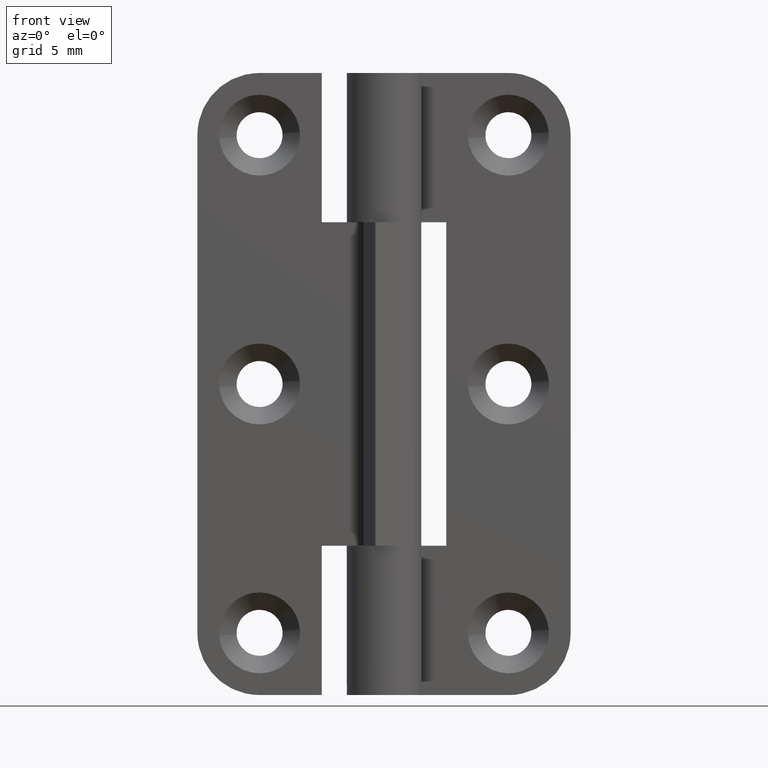
[diagram: clean part render]
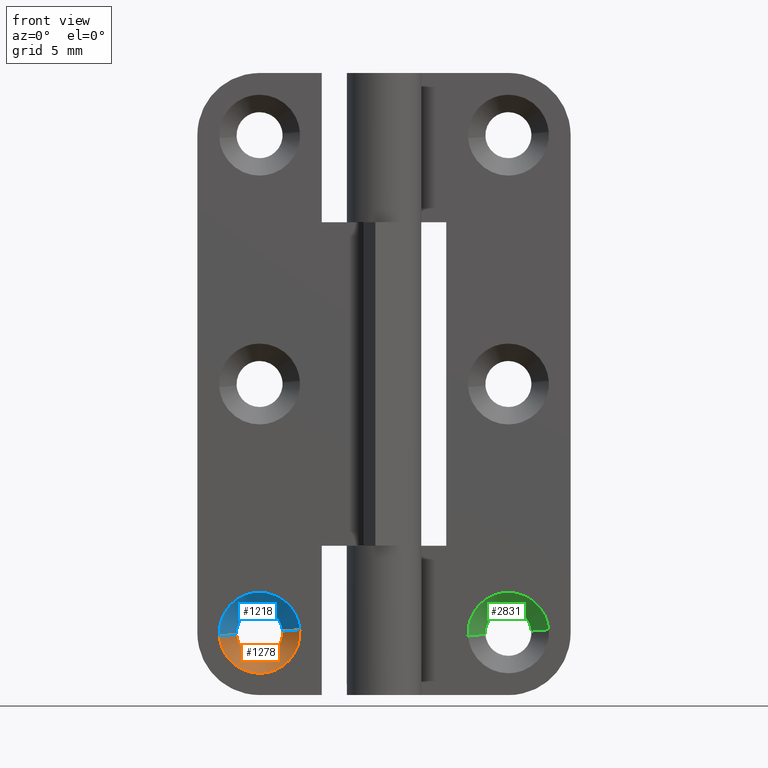
[diagram: same view with three faces highlighted in distinct colors, each labeled with its STEP entity id]
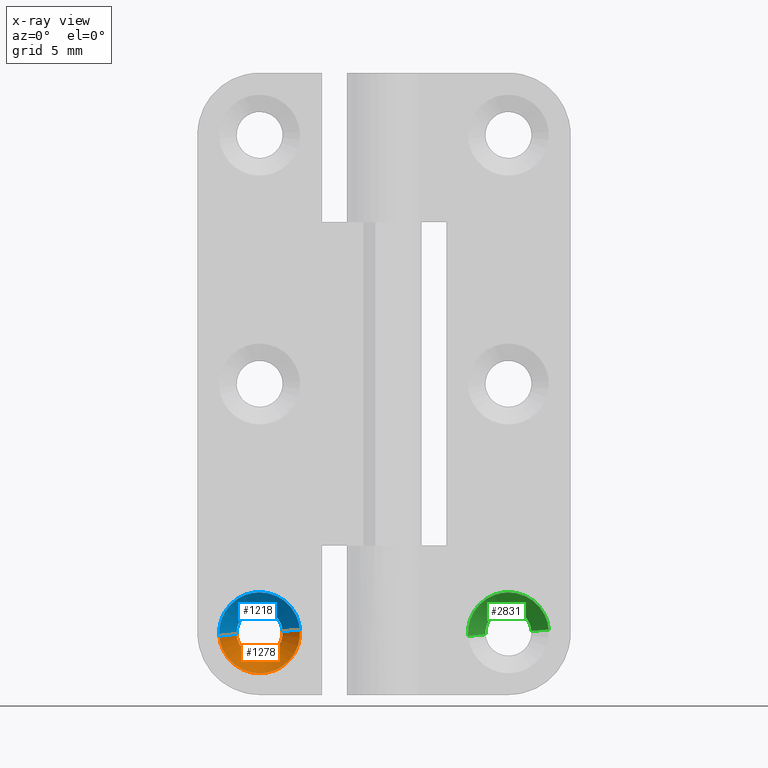
[diagram: x-ray of the same camera — body ghosted, the three highlighted faces saturated]
A machine part, front view with three faces highlighted in distinct colors.
The next image is the same camera in x-ray (body ghosted, the three faces saturated) — at least one of them is partly hidden behind the body in this view.
Their STEP definitions:

[orange] entity #1278 — the highlighted face is a freeform B-spline surface patch.
#969=CARTESIAN_POINT('',(-8.162081992152917,2.900000000000000,4.788913770152194));
#970=VERTEX_POINT('',#969);
#971=CARTESIAN_POINT('',(-10.0,2.900000000000000,3.150000000000100));
#972=VERTEX_POINT('',#971);
#973=CARTESIAN_POINT('',(-8.162081992152917,2.900000000000000,4.788913770152194));
#974=CARTESIAN_POINT('',(-8.350312439561385,2.900000000000000,3.150000000000099));
#975=CARTESIAN_POINT('',(-10.0,2.900000000000000,3.150000000000100));
#983=(BOUNDED_CURVE()B_SPLINE_CURVE(2,(#973,#974,#975),.UNSPECIFIED.,.F.,.U.)B_SPLINE_CURVE_WITH_KNOTS((3,3),(0.269767755891018,0.500000000000000),.UNSPECIFIED.)CURVE()GEOMETRIC_REPRESENTATION_ITEM()RATIONAL_B_SPLINE_CURVE((0.957343736432242,0.730266147793103,1.0))REPRESENTATION_ITEM(''));
#984=EDGE_CURVE('',#970,#972,#983,.T.);
#1023=CARTESIAN_POINT('',(-11.846549391234459,2.899999999998773,4.887060433277013));
#1024=VERTEX_POINT('',#1023);
#1030=CARTESIAN_POINT('',(-10.0,2.900000000000000,3.150000000000100));
#1031=CARTESIAN_POINT('',(-11.740306442284723,2.900000000000001,3.150000000000099));
#1032=CARTESIAN_POINT('',(-11.846549391234461,2.899999999998774,4.887060433277013));
#1040=(BOUNDED_CURVE()B_SPLINE_CURVE(2,(#1030,#1031,#1032),.UNSPECIFIED.,.F.,.U.)B_SPLINE_CURVE_WITH_KNOTS((3,3),(0.500000000000000,0.739332983866171),.UNSPECIFIED.)CURVE()GEOMETRIC_REPRESENTATION_ITEM()RATIONAL_B_SPLINE_CURVE((1.0,0.719603967948837,0.976072088017988))REPRESENTATION_ITEM(''));
#1041=EDGE_CURVE('',#972,#1024,#1040,.T.);
#1068=CARTESIAN_POINT('',(-8.155702932588966,2.899999999988248,5.145149327186113));
#1069=VERTEX_POINT('',#1068);
#1070=CARTESIAN_POINT('',(-8.155702932588966,2.899999999988248,5.145149327186113));
#1071=CARTESIAN_POINT('',(-8.150000000000000,2.900000000000000,5.072686698053277));
#1072=CARTESIAN_POINT('',(-8.150000000000000,2.900000000000000,5.000000000000100));
#1073=CARTESIAN_POINT('',(-8.150000000000000,2.900000000000000,4.894111115124297));
#1074=CARTESIAN_POINT('',(-8.162081992152917,2.900000000000000,4.788913770152194));
#1082=(BOUNDED_CURVE()B_SPLINE_CURVE(2,(#1070,#1071,#1072,#1073,#1074),.UNSPECIFIED.,.F.,.U.)B_SPLINE_CURVE_WITH_KNOTS((3,2,3),(0.236331300616301,0.250000000000000,0.269767755891018),.UNSPECIFIED.)CURVE()GEOMETRIC_REPRESENTATION_ITEM()RATIONAL_B_SPLINE_CURVE((0.969723356137452,0.983986122562059,1.0,0.976840633393445,0.957343736432242))REPRESENTATION_ITEM(''));
#1083=EDGE_CURVE('',#1069,#970,#1082,.T.);
#1171=CARTESIAN_POINT('',(-6.760018665359870,1.499999999981076,5.254992061261946));
#1172=VERTEX_POINT('',#1171);
#1173=CARTESIAN_POINT('',(-8.155702932588966,2.899999999988248,5.145149327186113));
#1174=CARTESIAN_POINT('',(-6.760018665359870,1.499999999981076,5.254992061261946));
#1175=QUASI_UNIFORM_CURVE('',1,(#1173,#1174),.UNSPECIFIED.,.F.,.U.);
#1176=EDGE_CURVE('',#1069,#1172,#1175,.T.);
#1193=CARTESIAN_POINT('',(-13.239981334640129,1.499999999981076,4.745007938738254));
#1194=VERTEX_POINT('',#1193);
#1210=CARTESIAN_POINT('',(-11.846549391234459,2.899999999998773,4.887060433277013));
#1211=CARTESIAN_POINT('',(-13.239981334640129,1.499999999981076,4.745007938738254));
#1212=QUASI_UNIFORM_CURVE('',1,(#1210,#1211),.UNSPECIFIED.,.F.,.U.);
#1213=EDGE_CURVE('',#1024,#1194,#1212,.T.);
#1219=CARTESIAN_POINT('',(-11.813858317059649,2.934999999999999,4.914181998597351));
#1220=CARTESIAN_POINT('',(-11.811646154702958,2.934999999999999,4.886073810783474));
#1221=CARTESIAN_POINT('',(-11.667001701979595,2.935000000000001,3.048191780528426));
#1222=CARTESIAN_POINT('',(-9.857596741253961,2.935000000000001,3.190595039274467));
#1223=CARTESIAN_POINT('',(-8.048191780528327,2.935000000000001,3.332998298020508));
#1224=CARTESIAN_POINT('',(-8.191605219065743,2.935000000000001,5.155238809995702));
#1225=CARTESIAN_POINT('',(-8.192609479732299,2.935000000000002,5.167999151633443));
#1226=CARTESIAN_POINT('',(-13.283808097833816,1.464124999999999,4.844635137543212));
#1227=CARTESIAN_POINT('',(-13.279803200322073,1.464125000000000,4.793748089811574));
#1228=CARTESIAN_POINT('',(-13.017938962805607,1.464125000000000,1.466447474845025));
#1229=CARTESIAN_POINT('',(-9.742193218825266,1.464125000000000,1.724254256019759));
#1230=CARTESIAN_POINT('',(-6.466447474844925,1.464125000000000,1.982061037194493));
#1231=CARTESIAN_POINT('',(-6.726083084957392,1.464125000000000,5.281044256085113));
#1232=CARTESIAN_POINT('',(-6.727901197914814,1.464125000000000,5.304145571555583));
#1240=(BOUNDED_SURFACE()B_SPLINE_SURFACE(2,1,((#1219,#1226),(#1220,#1227),(#1221,#1228),(#1222,#1229),(#1223,#1230),(#1224,#1231),(#1225,#1232)),.UNSPECIFIED.,.F.,.F.,.U.)B_SPLINE_SURFACE_WITH_KNOTS((3,1,2,1,3),(2,2),(0.0,0.121969238920944,5.566185195971721,11.010401153022499,11.065179267179129),(0.0,2.080639899046805),.UNSPECIFIED.)GEOMETRIC_REPRESENTATION_ITEM()RATIONAL_B_SPLINE_SURFACE(((1.013123639203738,1.013123639203738),(1.006561819601869,1.006561819601869),(0.707106781186548,0.707106781186548),(1.0,1.0),(0.707106781186548,0.707106781186548),(1.002947006199320,1.002947006199320),(1.005894012398640,1.005894012398640)))REPRESENTATION_ITEM('')SURFACE());
#1241=ORIENTED_EDGE('',*,*,#1083,.T.);
#1242=ORIENTED_EDGE('',*,*,#984,.T.);
#1243=ORIENTED_EDGE('',*,*,#1041,.T.);
#1244=ORIENTED_EDGE('',*,*,#1213,.T.);
#1245=CARTESIAN_POINT('',(-10.0,1.500000000000000,1.750000000000100));
#1246=VERTEX_POINT('',#1245);
#1247=CARTESIAN_POINT('',(-10.0,1.500000000000000,1.750000000000100));
#1248=CARTESIAN_POINT('',(-13.004269097619707,1.500000000000000,1.750000000000100));
#1249=CARTESIAN_POINT('',(-13.239981334640131,1.499999999981076,4.745007938738254));
#1257=(BOUNDED_CURVE()B_SPLINE_CURVE(2,(#1247,#1248,#1249),.UNSPECIFIED.,.F.,.U.)B_SPLINE_CURVE_WITH_KNOTS((3,3),(0.500000000000000,0.736331300617438),.UNSPECIFIED.)CURVE()GEOMETRIC_REPRESENTATION_ITEM()RATIONAL_B_SPLINE_CURVE((1.0,0.723120658623155,0.969723356139826))REPRESENTATION_ITEM(''));
#1258=EDGE_CURVE('',#1246,#1194,#1257,.T.);
#1259=ORIENTED_EDGE('',*,*,#1258,.F.);
#1260=CARTESIAN_POINT('',(-6.760018665359870,1.499999999981076,5.254992061261947));
#1261=CARTESIAN_POINT('',(-6.750000000000000,1.500000000000000,5.127692847920563));
#1262=CARTESIAN_POINT('',(-6.750000000000001,1.500000000000000,5.000000000000100));
#1263=CARTESIAN_POINT('',(-6.750000000000001,1.500000000000000,1.750000000000100));
#1264=CARTESIAN_POINT('',(-10.0,1.500000000000000,1.750000000000100));
#1272=(BOUNDED_CURVE()B_SPLINE_CURVE(2,(#1260,#1261,#1262,#1263,#1264),.UNSPECIFIED.,.F.,.U.)B_SPLINE_CURVE_WITH_KNOTS((3,2,3),(0.236331300617438,0.250000000000000,0.500000000000000),.UNSPECIFIED.)CURVE()GEOMETRIC_REPRESENTATION_ITEM()RATIONAL_B_SPLINE_CURVE((0.969723356139824,0.983986122563391,1.0,0.707106781186547,1.0))REPRESENTATION_ITEM(''));
#1273=EDGE_CURVE('',#1172,#1246,#1272,.T.);
#1274=ORIENTED_EDGE('',*,*,#1273,.F.);
#1275=ORIENTED_EDGE('',*,*,#1176,.F.);
#1276=EDGE_LOOP('',(#1241,#1242,#1243,#1244,#1259,#1274,#1275));
#1277=FACE_OUTER_BOUND('',#1276,.T.);
#1278=ADVANCED_FACE('',(#1277),#1240,.F.);

[blue] entity #1218 — the highlighted face is a freeform B-spline surface patch.
#1023=CARTESIAN_POINT('',(-11.846549391234459,2.899999999998773,4.887060433277013));
#1024=VERTEX_POINT('',#1023);
#1068=CARTESIAN_POINT('',(-8.155702932588966,2.899999999988248,5.145149327186113));
#1069=VERTEX_POINT('',#1068);
#1085=CARTESIAN_POINT('',(-10.0,2.900000000000000,6.850000000000100));
#1086=VERTEX_POINT('',#1085);
#1087=CARTESIAN_POINT('',(-10.0,2.900000000000000,6.850000000000100));
#1088=CARTESIAN_POINT('',(-8.289877590597090,2.900000000000001,6.850000000000100));
#1089=CARTESIAN_POINT('',(-8.155702932588966,2.899999999988248,5.145149327186113));
#1097=(BOUNDED_CURVE()B_SPLINE_CURVE(2,(#1087,#1088,#1089),.UNSPECIFIED.,.F.,.U.)B_SPLINE_CURVE_WITH_KNOTS((3,3),(0.0,0.236331300616301),.UNSPECIFIED.)CURVE()GEOMETRIC_REPRESENTATION_ITEM()RATIONAL_B_SPLINE_CURVE((1.0,0.723120658624488,0.969723356137452))REPRESENTATION_ITEM(''));
#1098=EDGE_CURVE('',#1086,#1069,#1097,.T.);
#1100=CARTESIAN_POINT('',(-11.846549391234461,2.899999999998774,4.887060433277013));
#1101=CARTESIAN_POINT('',(-11.849999999999996,2.900000000000000,4.943477503930343));
#1102=CARTESIAN_POINT('',(-11.850000000000000,2.900000000000000,5.000000000000100));
#1103=CARTESIAN_POINT('',(-11.849999999999998,2.900000000000000,6.850000000000100));
#1104=CARTESIAN_POINT('',(-10.0,2.900000000000000,6.850000000000100));
#1112=(BOUNDED_CURVE()B_SPLINE_CURVE(2,(#1100,#1101,#1102,#1103,#1104),.UNSPECIFIED.,.F.,.U.)B_SPLINE_CURVE_WITH_KNOTS((3,2,3),(0.739332983866171,0.750000000000000,1.0),.UNSPECIFIED.)CURVE()GEOMETRIC_REPRESENTATION_ITEM()RATIONAL_B_SPLINE_CURVE((0.976072088017988,0.987502813237711,1.0,0.707106781186548,1.0))REPRESENTATION_ITEM(''));
#1113=EDGE_CURVE('',#1024,#1086,#1112,.T.);
#1152=CARTESIAN_POINT('',(-8.190595039274367,2.935000000000001,5.142403258746140));
#1153=CARTESIAN_POINT('',(-8.332998298020407,2.935000000000001,6.951808219471772));
#1154=CARTESIAN_POINT('',(-10.142403258746040,2.935000000000001,6.809404960725732));
#1155=CARTESIAN_POINT('',(-11.951808219471674,2.935000000000001,6.667001701979691));
#1156=CARTESIAN_POINT('',(-11.809404960725630,2.935000000000001,4.857596741254059));
#1157=CARTESIAN_POINT('',(-6.724254256019659,1.464125000000000,5.257806781174834));
#1158=CARTESIAN_POINT('',(-6.982061037194393,1.464125000000000,8.533552525155175));
#1159=CARTESIAN_POINT('',(-10.257806781174731,1.464125000000000,8.275745743980441));
#1160=CARTESIAN_POINT('',(-13.533552525155075,1.464125000000000,8.017938962805706));
#1161=CARTESIAN_POINT('',(-13.275745743980339,1.464125000000000,4.742193218825365));
#1169=(BOUNDED_SURFACE()B_SPLINE_SURFACE(2,1,((#1152,#1157),(#1153,#1158),(#1154,#1159),(#1155,#1160),(#1156,#1161)),.UNSPECIFIED.,.F.,.F.,.U.)B_SPLINE_SURFACE_WITH_KNOTS((3,2,3),(2,2),(0.0,5.444215957050775,10.888431914101551),(0.0,2.080131373555523),.UNSPECIFIED.)GEOMETRIC_REPRESENTATION_ITEM()RATIONAL_B_SPLINE_SURFACE(((1.0,1.0),(0.707106781186548,0.707106781186548),(1.0,1.0),(0.707106781186548,0.707106781186548),(1.0,1.0)))REPRESENTATION_ITEM('')SURFACE());
#1170=ORIENTED_EDGE('',*,*,#1098,.T.);
#1171=CARTESIAN_POINT('',(-6.760018665359870,1.499999999981076,5.254992061261946));
#1172=VERTEX_POINT('',#1171);
#1173=CARTESIAN_POINT('',(-8.155702932588966,2.899999999988248,5.145149327186113));
#1174=CARTESIAN_POINT('',(-6.760018665359870,1.499999999981076,5.254992061261946));
#1175=QUASI_UNIFORM_CURVE('',1,(#1173,#1174),.UNSPECIFIED.,.F.,.U.);
#1176=EDGE_CURVE('',#1069,#1172,#1175,.T.);
#1177=ORIENTED_EDGE('',*,*,#1176,.T.);
#1178=CARTESIAN_POINT('',(-10.0,1.500000000000000,8.250000000000100));
#1179=VERTEX_POINT('',#1178);
#1180=CARTESIAN_POINT('',(-10.0,1.500000000000000,8.250000000000100));
#1181=CARTESIAN_POINT('',(-6.995730902380309,1.500000000000000,8.250000000000101));
#1182=CARTESIAN_POINT('',(-6.760018665359870,1.499999999981075,5.254992061261947));
#1190=(BOUNDED_CURVE()B_SPLINE_CURVE(2,(#1180,#1181,#1182),.UNSPECIFIED.,.F.,.U.)B_SPLINE_CURVE_WITH_KNOTS((3,3),(0.0,0.236331300617438),.UNSPECIFIED.)CURVE()GEOMETRIC_REPRESENTATION_ITEM()RATIONAL_B_SPLINE_CURVE((1.0,0.723120658623156,0.969723356139825))REPRESENTATION_ITEM(''));
#1191=EDGE_CURVE('',#1179,#1172,#1190,.T.);
#1192=ORIENTED_EDGE('',*,*,#1191,.F.);
#1193=CARTESIAN_POINT('',(-13.239981334640129,1.499999999981076,4.745007938738254));
#1194=VERTEX_POINT('',#1193);
#1195=CARTESIAN_POINT('',(-13.239981334640131,1.499999999981076,4.745007938738254));
#1196=CARTESIAN_POINT('',(-13.250000000000005,1.500000000000000,4.872307152079635));
#1197=CARTESIAN_POINT('',(-13.250000000000000,1.500000000000000,5.000000000000100));
#1198=CARTESIAN_POINT('',(-13.250000000000004,1.500000000000000,8.250000000000100));
#1199=CARTESIAN_POINT('',(-10.0,1.500000000000000,8.250000000000100));
#1207=(BOUNDED_CURVE()B_SPLINE_CURVE(2,(#1195,#1196,#1197,#1198,#1199),.UNSPECIFIED.,.F.,.U.)B_SPLINE_CURVE_WITH_KNOTS((3,2,3),(0.736331300617438,0.750000000000000,1.0),.UNSPECIFIED.)CURVE()GEOMETRIC_REPRESENTATION_ITEM()RATIONAL_B_SPLINE_CURVE((0.969723356139824,0.983986122563391,1.0,0.707106781186547,1.0))REPRESENTATION_ITEM(''));
#1208=EDGE_CURVE('',#1194,#1179,#1207,.T.);
#1209=ORIENTED_EDGE('',*,*,#1208,.F.);
#1210=CARTESIAN_POINT('',(-11.846549391234459,2.899999999998773,4.887060433277013));
#1211=CARTESIAN_POINT('',(-13.239981334640129,1.499999999981076,4.745007938738254));
#1212=QUASI_UNIFORM_CURVE('',1,(#1210,#1211),.UNSPECIFIED.,.F.,.U.);
#1213=EDGE_CURVE('',#1024,#1194,#1212,.T.);
#1214=ORIENTED_EDGE('',*,*,#1213,.F.);
#1215=ORIENTED_EDGE('',*,*,#1113,.T.);
#1216=EDGE_LOOP('',(#1170,#1177,#1192,#1209,#1214,#1215));
#1217=FACE_OUTER_BOUND('',#1216,.T.);
#1218=ADVANCED_FACE('',(#1217),#1169,.F.);

[green] entity #2831 — the highlighted face is a freeform B-spline surface patch.
#2636=CARTESIAN_POINT('',(8.153450608765542,2.899999999998774,4.887060433277011));
#2637=VERTEX_POINT('',#2636);
#2681=CARTESIAN_POINT('',(11.844297067411031,2.899999999988247,5.145149327186113));
#2682=VERTEX_POINT('',#2681);
#2698=CARTESIAN_POINT('',(10.0,2.900000000000000,6.850000000000100));
#2699=VERTEX_POINT('',#2698);
#2700=CARTESIAN_POINT('',(10.0,2.900000000000000,6.850000000000100));
#2701=CARTESIAN_POINT('',(11.710122409402910,2.900000000000001,6.850000000000100));
#2702=CARTESIAN_POINT('',(11.844297067411038,2.899999999988247,5.145149327186113));
#2710=(BOUNDED_CURVE()B_SPLINE_CURVE(2,(#2700,#2701,#2702),.UNSPECIFIED.,.F.,.U.)B_SPLINE_CURVE_WITH_KNOTS((3,3),(0.0,0.236331300616301),.UNSPECIFIED.)CURVE()GEOMETRIC_REPRESENTATION_ITEM()RATIONAL_B_SPLINE_CURVE((1.0,0.723120658624488,0.969723356137452))REPRESENTATION_ITEM(''));
#2711=EDGE_CURVE('',#2699,#2682,#2710,.T.);
#2713=CARTESIAN_POINT('',(8.153450608765544,2.899999999998773,4.887060433277011));
#2714=CARTESIAN_POINT('',(8.150000000000000,2.900000000000000,4.943477503930341));
#2715=CARTESIAN_POINT('',(8.150000000000000,2.900000000000000,5.000000000000100));
#2716=CARTESIAN_POINT('',(8.150000000000000,2.900000000000000,6.850000000000100));
#2717=CARTESIAN_POINT('',(10.0,2.900000000000000,6.850000000000100));
#2725=(BOUNDED_CURVE()B_SPLINE_CURVE(2,(#2713,#2714,#2715,#2716,#2717),.UNSPECIFIED.,.F.,.U.)B_SPLINE_CURVE_WITH_KNOTS((3,2,3),(0.739332983866170,0.750000000000000,1.0),.UNSPECIFIED.)CURVE()GEOMETRIC_REPRESENTATION_ITEM()RATIONAL_B_SPLINE_CURVE((0.976072088017988,0.987502813237711,1.0,0.707106781186548,1.0))REPRESENTATION_ITEM(''));
#2726=EDGE_CURVE('',#2637,#2699,#2725,.T.);
#2765=CARTESIAN_POINT('',(11.809404960725630,2.935000000000001,5.142403258746140));
#2766=CARTESIAN_POINT('',(11.667001701979595,2.935000000000001,6.951808219471772));
#2767=CARTESIAN_POINT('',(9.857596741253961,2.935000000000001,6.809404960725732));
#2768=CARTESIAN_POINT('',(8.048191780528327,2.935000000000001,6.667001701979691));
#2769=CARTESIAN_POINT('',(8.190595039274367,2.935000000000001,4.857596741254059));
#2770=CARTESIAN_POINT('',(13.275745743980339,1.464125000000000,5.257806781174834));
#2771=CARTESIAN_POINT('',(13.017938962805607,1.464125000000000,8.533552525155175));
#2772=CARTESIAN_POINT('',(9.742193218825266,1.464125000000000,8.275745743980441));
#2773=CARTESIAN_POINT('',(6.466447474844925,1.464125000000000,8.017938962805706));
#2774=CARTESIAN_POINT('',(6.724254256019659,1.464125000000000,4.742193218825365));
#2782=(BOUNDED_SURFACE()B_SPLINE_SURFACE(2,1,((#2765,#2770),(#2766,#2771),(#2767,#2772),(#2768,#2773),(#2769,#2774)),.UNSPECIFIED.,.F.,.F.,.U.)B_SPLINE_SURFACE_WITH_KNOTS((3,2,3),(2,2),(0.0,5.444215957050775,10.888431914101551),(0.0,2.080131373555523),.UNSPECIFIED.)GEOMETRIC_REPRESENTATION_ITEM()RATIONAL_B_SPLINE_SURFACE(((1.0,1.0),(0.707106781186548,0.707106781186548),(1.0,1.0),(0.707106781186548,0.707106781186548),(1.0,1.0)))REPRESENTATION_ITEM('')SURFACE());
#2783=ORIENTED_EDGE('',*,*,#2711,.T.);
#2784=CARTESIAN_POINT('',(13.239981334640129,1.499999999981076,5.254992061261946));
#2785=VERTEX_POINT('',#2784);
#2786=CARTESIAN_POINT('',(11.844297067411031,2.899999999988247,5.145149327186113));
#2787=CARTESIAN_POINT('',(13.239981334640129,1.499999999981076,5.254992061261946));
#2788=QUASI_UNIFORM_CURVE('',1,(#2786,#2787),.UNSPECIFIED.,.F.,.U.);
#2789=EDGE_CURVE('',#2682,#2785,#2788,.T.);
#2790=ORIENTED_EDGE('',*,*,#2789,.T.);
#2791=CARTESIAN_POINT('',(10.0,1.500000000000000,8.250000000000100));
#2792=VERTEX_POINT('',#2791);
#2793=CARTESIAN_POINT('',(10.0,1.500000000000000,8.250000000000100));
#2794=CARTESIAN_POINT('',(13.004269097619696,1.500000000000000,8.250000000000101));
#2795=CARTESIAN_POINT('',(13.239981334640129,1.499999999981075,5.254992061261947));
#2803=(BOUNDED_CURVE()B_SPLINE_CURVE(2,(#2793,#2794,#2795),.UNSPECIFIED.,.F.,.U.)B_SPLINE_CURVE_WITH_KNOTS((3,3),(0.0,0.236331300617438),.UNSPECIFIED.)CURVE()GEOMETRIC_REPRESENTATION_ITEM()RATIONAL_B_SPLINE_CURVE((1.0,0.723120658623156,0.969723356139825))REPRESENTATION_ITEM(''));
#2804=EDGE_CURVE('',#2792,#2785,#2803,.T.);
#2805=ORIENTED_EDGE('',*,*,#2804,.F.);
#2806=CARTESIAN_POINT('',(6.760018665359870,1.499999999981076,4.745007938738254));
#2807=VERTEX_POINT('',#2806);
#2808=CARTESIAN_POINT('',(6.760018665359870,1.499999999981076,4.745007938738254));
#2809=CARTESIAN_POINT('',(6.750000000000002,1.500000000000000,4.872307152079638));
#2810=CARTESIAN_POINT('',(6.750000000000001,1.500000000000000,5.000000000000100));
#2811=CARTESIAN_POINT('',(6.750000000000001,1.500000000000000,8.250000000000100));
#2812=CARTESIAN_POINT('',(10.0,1.500000000000000,8.250000000000100));
#2820=(BOUNDED_CURVE()B_SPLINE_CURVE(2,(#2808,#2809,#2810,#2811,#2812),.UNSPECIFIED.,.F.,.U.)B_SPLINE_CURVE_WITH_KNOTS((3,2,3),(0.736331300617438,0.750000000000000,1.0),.UNSPECIFIED.)CURVE()GEOMETRIC_REPRESENTATION_ITEM()RATIONAL_B_SPLINE_CURVE((0.969723356139825,0.983986122563391,1.0,0.707106781186547,1.0))REPRESENTATION_ITEM(''));
#2821=EDGE_CURVE('',#2807,#2792,#2820,.T.);
#2822=ORIENTED_EDGE('',*,*,#2821,.F.);
#2823=CARTESIAN_POINT('',(8.153450608765542,2.899999999998774,4.887060433277011));
#2824=CARTESIAN_POINT('',(6.760018665359870,1.499999999981076,4.745007938738254));
#2825=QUASI_UNIFORM_CURVE('',1,(#2823,#2824),.UNSPECIFIED.,.F.,.U.);
#2826=EDGE_CURVE('',#2637,#2807,#2825,.T.);
#2827=ORIENTED_EDGE('',*,*,#2826,.F.);
#2828=ORIENTED_EDGE('',*,*,#2726,.T.);
#2829=EDGE_LOOP('',(#2783,#2790,#2805,#2822,#2827,#2828));
#2830=FACE_OUTER_BOUND('',#2829,.T.);
#2831=ADVANCED_FACE('',(#2830),#2782,.F.);